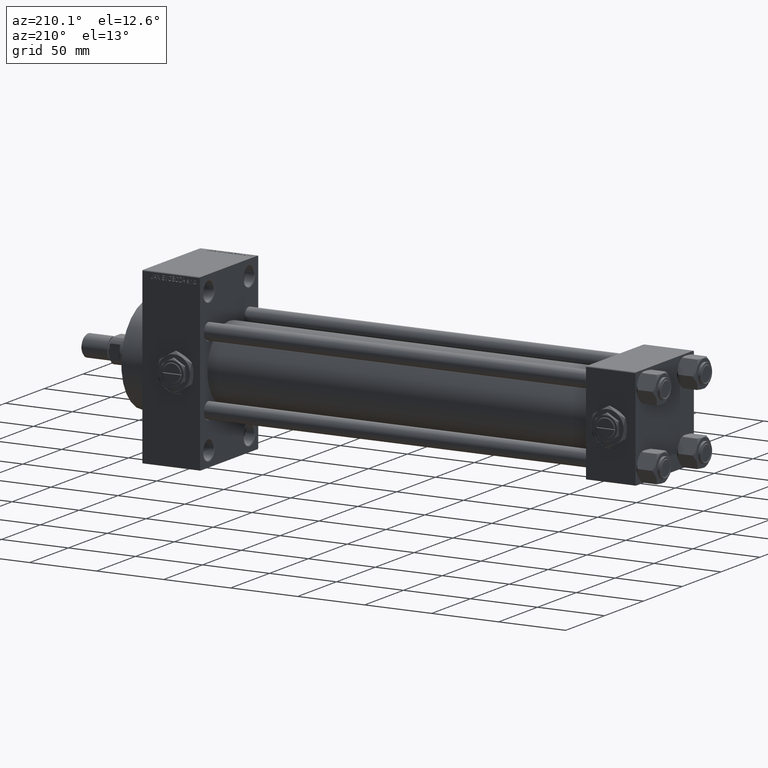
[diagram: clean part render]
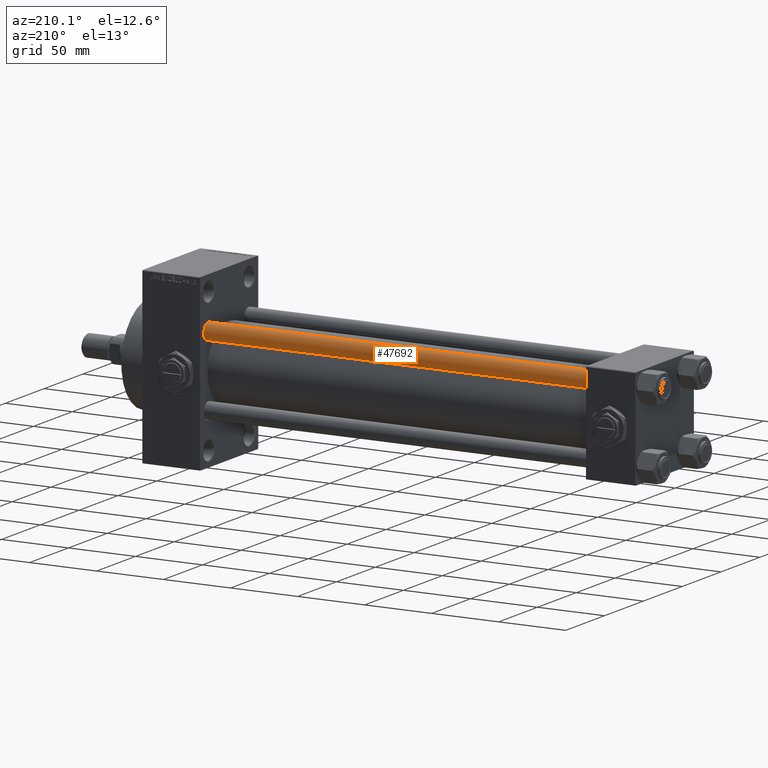
[diagram: same view with one face highlighted and labeled with its STEP entity id]
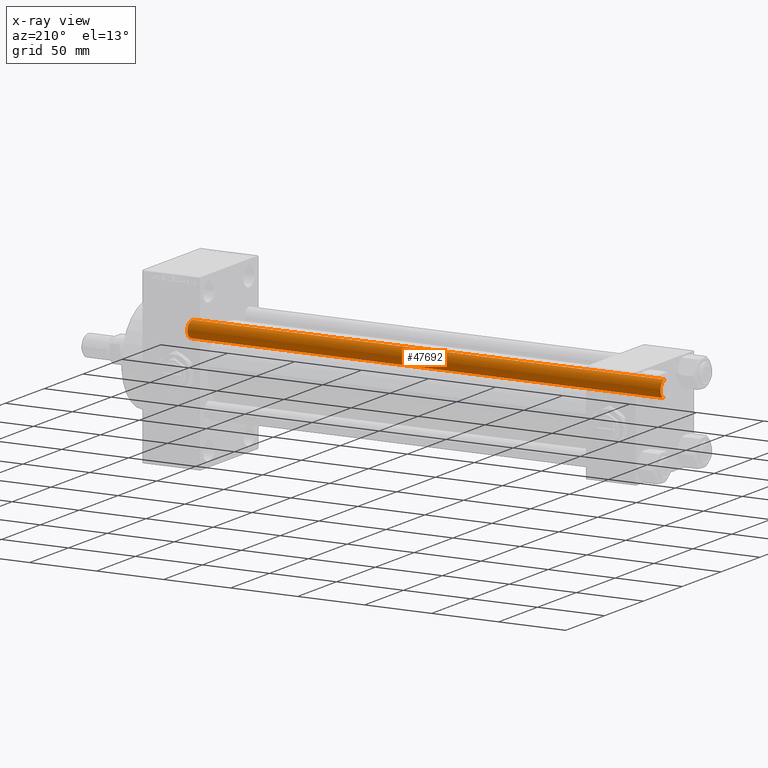
[diagram: x-ray of the same camera — body ghosted, the highlighted face saturated]
A machine part, auxiliary view. The second image highlights one B-rep face of the part: STEP entity #47692.
The next image is the same camera in x-ray: the body ghosted, the highlighted face saturated — about 0% of this face is hidden behind the body in this view.
In plain terms, the highlighted cylindrical surface (edge-blend (fillet) strip) has radius 6 mm, axis along (-1, -0, 0).
Its self-contained STEP definition (entity closure, byte-faithful):
#896 = EDGE_CURVE ( 'NONE', #6487, #27135, #4574, .T. ) ;
#1200 = CARTESIAN_POINT ( 'NONE',  ( -6.000000000000000888, 0.000000000000000000, 0.5000000000000559552 ) ) ;
#2941 = CARTESIAN_POINT ( 'NONE',  ( 6.000000000000000888, 7.347880794884120722E-16, 354.0000000000000000 ) ) ;
#4109 = CARTESIAN_POINT ( 'NONE',  ( 0.000000000000000000, 0.000000000000000000, 0.5000000000000559552 ) ) ;
#4574 = LINE ( 'NONE', #30645, #26558 ) ;
#6487 = VERTEX_POINT ( 'NONE', #21045 ) ;
#7450 = DIRECTION ( 'NONE',  ( 1.000000000000000000, 0.000000000000000000, 0.000000000000000000 ) ) ;
#10355 = ORIENTED_EDGE ( 'NONE', *, *, #896, .F. ) ;
#10711 = ORIENTED_EDGE ( 'NONE', *, *, #44490, .T. ) ;
#11674 = DIRECTION ( 'NONE',  ( -0.000000000000000000, -0.000000000000000000, -1.000000000000000000 ) ) ;
#12833 = DIRECTION ( 'NONE',  ( -1.000000000000000000, 0.000000000000000000, 0.000000000000000000 ) ) ;
#14581 = VECTOR ( 'NONE', #17611, 1000.000000000000000 ) ;
#15977 = ORIENTED_EDGE ( 'NONE', *, *, #18393, .T. ) ;
#16241 = AXIS2_PLACEMENT_3D ( 'NONE', #20912, #27757, #12833 ) ;
#17611 = DIRECTION ( 'NONE',  ( -0.000000000000000000, -0.000000000000000000, -1.000000000000000000 ) ) ;
#18393 = EDGE_CURVE ( 'NONE', #19279, #27135, #42367, .T. ) ;
#19279 = VERTEX_POINT ( 'NONE', #19350 ) ;
#19350 = CARTESIAN_POINT ( 'NONE',  ( 6.000000000000000888, 7.347880794884120722E-16, 0.5000000000000559552 ) ) ;
#20912 = CARTESIAN_POINT ( 'NONE',  ( 0.000000000000000000, 0.000000000000000000, 354.0000000000000000 ) ) ;
#20960 = EDGE_CURVE ( 'NONE', #6487, #46641, #22146, .T. ) ;
#21045 = CARTESIAN_POINT ( 'NONE',  ( -6.000000000000000888, 0.000000000000000000, 353.5000000000000000 ) ) ;
#22146 = CIRCLE ( 'NONE', #28585, 6.000000000000000888 ) ;
#26163 = DIRECTION ( 'NONE',  ( 0.000000000000000000, 0.000000000000000000, -1.000000000000000000 ) ) ;
#26558 = VECTOR ( 'NONE', #11674, 1000.000000000000000 ) ;
#27135 = VERTEX_POINT ( 'NONE', #1200 ) ;
#27757 = DIRECTION ( 'NONE',  ( -0.000000000000000000, -0.000000000000000000, -1.000000000000000000 ) ) ;
#28585 = AXIS2_PLACEMENT_3D ( 'NONE', #38028, #26163, #7450 ) ;
#29046 = EDGE_LOOP ( 'NONE', ( #43658, #10711, #15977, #10355 ) ) ;
#30645 = CARTESIAN_POINT ( 'NONE',  ( -6.000000000000000888, 0.000000000000000000, 354.0000000000000000 ) ) ;
#31410 = DIRECTION ( 'NONE',  ( -0.000000000000000000, -0.000000000000000000, 1.000000000000000000 ) ) ;
#33522 = LINE ( 'NONE', #2941, #14581 ) ;
#34941 = DIRECTION ( 'NONE',  ( 1.000000000000000000, 0.000000000000000000, 0.000000000000000000 ) ) ;
#35798 = AXIS2_PLACEMENT_3D ( 'NONE', #4109, #31410, #34941 ) ;
#38028 = CARTESIAN_POINT ( 'NONE',  ( 0.000000000000000000, 0.000000000000000000, 353.5000000000000000 ) ) ;
#38777 = CARTESIAN_POINT ( 'NONE',  ( 6.000000000000000888, 7.347880794884120722E-16, 353.5000000000000000 ) ) ;
#39379 = FACE_OUTER_BOUND ( 'NONE', #29046, .T. ) ;
#42367 = CIRCLE ( 'NONE', #35798, 6.000000000000000888 ) ;
#43658 = ORIENTED_EDGE ( 'NONE', *, *, #20960, .T. ) ;
#44490 = EDGE_CURVE ( 'NONE', #46641, #19279, #33522, .T. ) ;
#46641 = VERTEX_POINT ( 'NONE', #38777 ) ;
#46695 = CYLINDRICAL_SURFACE ( 'NONE', #16241, 6.000000000000000888 ) ;
#47692 = ADVANCED_FACE ( 'NONE', ( #39379 ), #46695, .T. ) ;